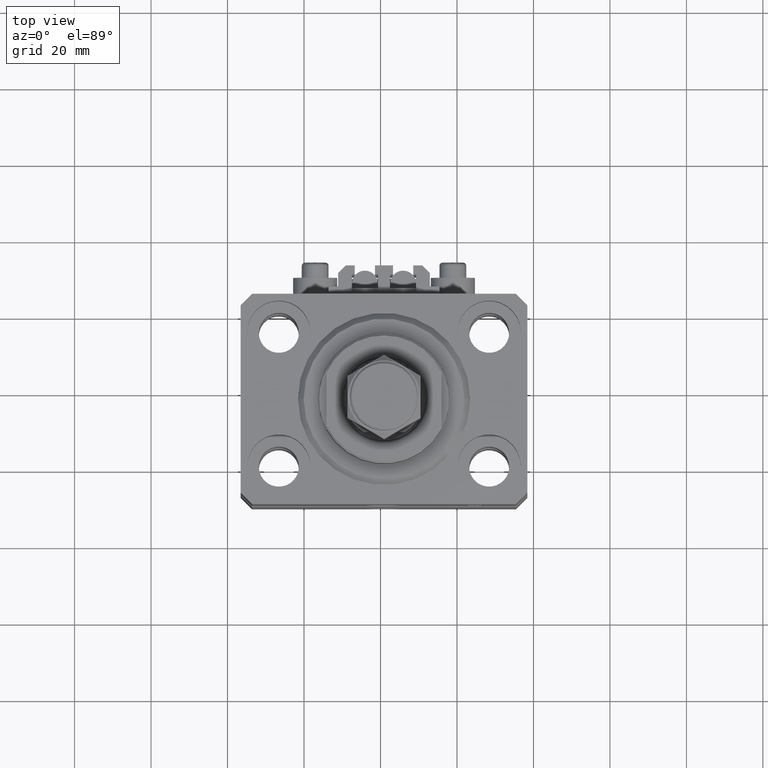
[diagram: clean part render]
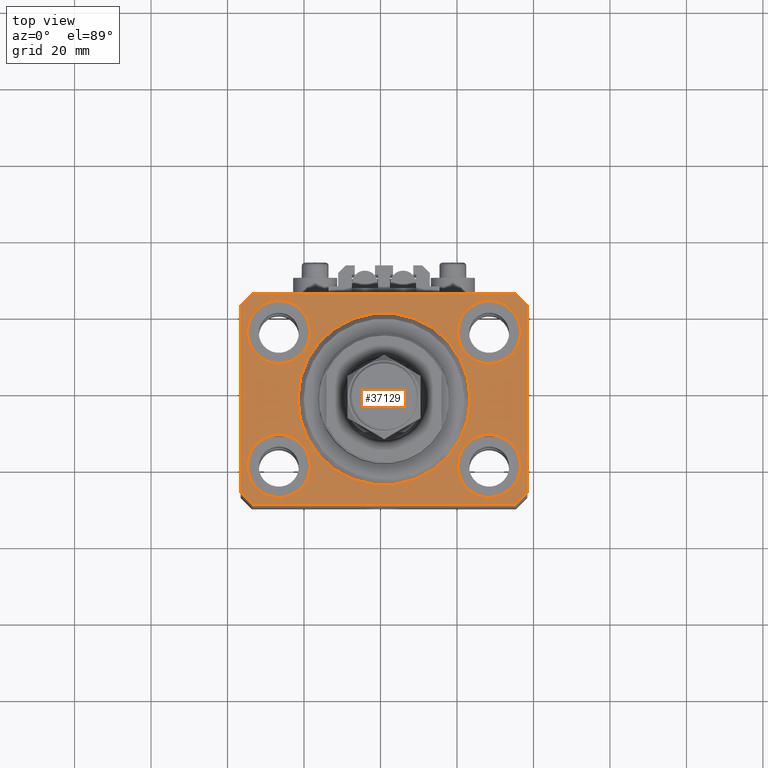
[diagram: same view with one face highlighted and labeled with its STEP entity id]
A machine part, top view. The second image highlights one B-rep face of the part: STEP entity #37129.
In plain terms, the highlighted planar face has unit normal (0, 0, 1).
Its self-contained STEP definition (entity closure, byte-faithful):
#67 = CARTESIAN_POINT ( 'NONE',  ( 0.000000000000000000, 0.000000000000000000, 0.000000000000000000 ) ) ;
#353 = CARTESIAN_POINT ( 'NONE',  ( -34.49999999999999289, 27.50000000000000000, 0.000000000000000000 ) ) ;
#370 = CARTESIAN_POINT ( 'NONE',  ( -37.49999999999999289, 24.50000000000000000, 0.000000000000000000 ) ) ;
#383 = VECTOR ( 'NONE', #3905, 1000.000000000000000 ) ;
#836 = ORIENTED_EDGE ( 'NONE', *, *, #43142, .F. ) ;
#885 = VECTOR ( 'NONE', #36790, 1000.000000000000114 ) ;
#1406 = ORIENTED_EDGE ( 'NONE', *, *, #6648, .T. ) ;
#1569 = EDGE_CURVE ( 'NONE', #31889, #34473, #16329, .T. ) ;
#1580 = DIRECTION ( 'NONE',  ( 1.000000000000000000, 0.000000000000000000, 0.000000000000000000 ) ) ;
#2079 = AXIS2_PLACEMENT_3D ( 'NONE', #2162, #28844, #25101 ) ;
#2162 = CARTESIAN_POINT ( 'NONE',  ( 27.49999999999999645, 17.50000000000001066, 0.000000000000000000 ) ) ;
#2267 = CARTESIAN_POINT ( 'NONE',  ( -35.75000000000000711, -17.50000000000000000, 0.000000000000000000 ) ) ;
#2297 = VECTOR ( 'NONE', #17870, 1000.000000000000000 ) ;
#2460 = DIRECTION ( 'NONE',  ( 0.000000000000000000, -1.000000000000000000, 0.000000000000000000 ) ) ;
#2657 = LINE ( 'NONE', #14385, #2297 ) ;
#2788 = AXIS2_PLACEMENT_3D ( 'NONE', #9709, #9950, #17673 ) ;
#3905 = DIRECTION ( 'NONE',  ( 1.076236605503979380E-14, 1.000000000000000000, 0.000000000000000000 ) ) ;
#4105 = CARTESIAN_POINT ( 'NONE',  ( 19.25000000000000000, -17.50000000000000000, 0.000000000000000000 ) ) ;
#4373 = AXIS2_PLACEMENT_3D ( 'NONE', #5833, #20532, #8853 ) ;
#4401 = CARTESIAN_POINT ( 'NONE',  ( 37.49999999999999289, -24.50000000000000000, 0.000000000000000000 ) ) ;
#4476 = EDGE_CURVE ( 'NONE', #27150, #20739, #42614, .T. ) ;
#5407 = EDGE_LOOP ( 'NONE', ( #18723, #836 ) ) ;
#5465 = CARTESIAN_POINT ( 'NONE',  ( -27.50000000000000355, 17.50000000000000000, 0.000000000000000000 ) ) ;
#5833 = CARTESIAN_POINT ( 'NONE',  ( 27.50000000000000355, -17.50000000000000000, 0.000000000000000000 ) ) ;
#5877 = VERTEX_POINT ( 'NONE', #2267 ) ;
#6196 = EDGE_CURVE ( 'NONE', #29832, #36337, #10106, .T. ) ;
#6248 = AXIS2_PLACEMENT_3D ( 'NONE', #25489, #28977, #40449 ) ;
#6648 = EDGE_CURVE ( 'NONE', #26087, #48477, #7516, .T. ) ;
#7302 = EDGE_CURVE ( 'NONE', #29399, #20218, #34849, .T. ) ;
#7516 = LINE ( 'NONE', #26960, #41177 ) ;
#7518 = EDGE_LOOP ( 'NONE', ( #10762, #25119 ) ) ;
#7865 = EDGE_CURVE ( 'NONE', #19326, #24314, #10181, .T. ) ;
#7892 = VECTOR ( 'NONE', #23280, 1000.000000000000000 ) ;
#8157 = ORIENTED_EDGE ( 'NONE', *, *, #4476, .T. ) ;
#8319 = CARTESIAN_POINT ( 'NONE',  ( 34.49999999999999289, -27.49999999999999645, 0.000000000000000000 ) ) ;
#8567 = VERTEX_POINT ( 'NONE', #370 ) ;
#8853 = DIRECTION ( 'NONE',  ( 1.000000000000000000, 0.000000000000000000, 0.000000000000000000 ) ) ;
#9073 = EDGE_CURVE ( 'NONE', #48477, #15450, #19251, .T. ) ;
#9326 = AXIS2_PLACEMENT_3D ( 'NONE', #30115, #45070, #36863 ) ;
#9415 = EDGE_CURVE ( 'NONE', #36337, #29832, #36473, .T. ) ;
#9709 = CARTESIAN_POINT ( 'NONE',  ( -27.50000000000000355, -17.50000000000000000, 0.000000000000000000 ) ) ;
#9866 = EDGE_LOOP ( 'NONE', ( #23550, #26777 ) ) ;
#9950 = DIRECTION ( 'NONE',  ( 0.000000000000000000, 0.000000000000000000, 1.000000000000000000 ) ) ;
#10106 = CIRCLE ( 'NONE', #9326, 8.250000000000000000 ) ;
#10181 = CIRCLE ( 'NONE', #17354, 8.249999999999992895 ) ;
#10281 = VERTEX_POINT ( 'NONE', #24386 ) ;
#10357 = EDGE_CURVE ( 'NONE', #10281, #27150, #2657, .T. ) ;
#10748 = DIRECTION ( 'NONE',  ( 1.000000000000000000, 0.000000000000000000, 0.000000000000000000 ) ) ;
#10762 = ORIENTED_EDGE ( 'NONE', *, *, #1569, .F. ) ;
#10936 = LINE ( 'NONE', #41596, #12842 ) ;
#11357 = ORIENTED_EDGE ( 'NONE', *, *, #10357, .T. ) ;
#11773 = FACE_BOUND ( 'NONE', #5407, .T. ) ;
#12265 = DIRECTION ( 'NONE',  ( 0.000000000000000000, 0.000000000000000000, 1.000000000000000000 ) ) ;
#12316 = LINE ( 'NONE', #353, #7892 ) ;
#12463 = ORIENTED_EDGE ( 'NONE', *, *, #35895, .T. ) ;
#12604 = DIRECTION ( 'NONE',  ( 1.000000000000000000, 0.000000000000000000, 0.000000000000000000 ) ) ;
#12626 = CIRCLE ( 'NONE', #6248, 8.250000000000000000 ) ;
#12842 = VECTOR ( 'NONE', #2460, 1000.000000000000000 ) ;
#13047 = CARTESIAN_POINT ( 'NONE',  ( 27.49999999999999645, 17.50000000000001066, 0.000000000000000000 ) ) ;
#13614 = VERTEX_POINT ( 'NONE', #40188 ) ;
#13896 = DIRECTION ( 'NONE',  ( 0.000000000000000000, 0.000000000000000000, 1.000000000000000000 ) ) ;
#14347 = LINE ( 'NONE', #44259, #885 ) ;
#14385 = CARTESIAN_POINT ( 'NONE',  ( -37.49999999999999289, -24.50000000000000000, 0.000000000000000000 ) ) ;
#15261 = DIRECTION ( 'NONE',  ( 1.000000000000000000, 0.000000000000000000, -0.000000000000000000 ) ) ;
#15450 = VERTEX_POINT ( 'NONE', #47794 ) ;
#15499 = FACE_BOUND ( 'NONE', #7518, .T. ) ;
#16106 = AXIS2_PLACEMENT_3D ( 'NONE', #24550, #28285, #12604 ) ;
#16262 = ORIENTED_EDGE ( 'NONE', *, *, #20470, .F. ) ;
#16329 = CIRCLE ( 'NONE', #4373, 8.250000000000000000 ) ;
#16873 = CARTESIAN_POINT ( 'NONE',  ( 19.25000000000000000, 17.50000000000001066, 0.000000000000000000 ) ) ;
#17354 = AXIS2_PLACEMENT_3D ( 'NONE', #13047, #25254, #1580 ) ;
#17673 = DIRECTION ( 'NONE',  ( 1.000000000000000000, 0.000000000000000000, 0.000000000000000000 ) ) ;
#17818 = EDGE_CURVE ( 'NONE', #20739, #13614, #14347, .T. ) ;
#17870 = DIRECTION ( 'NONE',  ( 0.7071067811865483499, -0.7071067811865466846, 0.000000000000000000 ) ) ;
#18723 = ORIENTED_EDGE ( 'NONE', *, *, #7302, .F. ) ;
#19041 = EDGE_CURVE ( 'NONE', #8567, #10281, #10936, .T. ) ;
#19246 = PLANE ( 'NONE',  #39770 ) ;
#19251 = LINE ( 'NONE', #34470, #45253 ) ;
#19326 = VERTEX_POINT ( 'NONE', #33306 ) ;
#19523 = ORIENTED_EDGE ( 'NONE', *, *, #9073, .T. ) ;
#19606 = LINE ( 'NONE', #4401, #383 ) ;
#19775 = AXIS2_PLACEMENT_3D ( 'NONE', #5465, #39618, #47832 ) ;
#20190 = EDGE_LOOP ( 'NONE', ( #19523, #12463, #36990, #11357, #8157, #46026, #26635, #1406 ) ) ;
#20218 = VERTEX_POINT ( 'NONE', #39332 ) ;
#20470 = EDGE_CURVE ( 'NONE', #5877, #41251, #32025, .T. ) ;
#20532 = DIRECTION ( 'NONE',  ( 0.000000000000000000, 0.000000000000000000, 1.000000000000000000 ) ) ;
#20705 = CARTESIAN_POINT ( 'NONE',  ( 35.75000000000000711, -17.50000000000000000, 0.000000000000000000 ) ) ;
#20717 = AXIS2_PLACEMENT_3D ( 'NONE', #40918, #33180, #10748 ) ;
#20739 = VERTEX_POINT ( 'NONE', #8319 ) ;
#21621 = DIRECTION ( 'NONE',  ( 1.000000000000000000, 0.000000000000000000, 0.000000000000000000 ) ) ;
#21861 = CARTESIAN_POINT ( 'NONE',  ( 0.000000000000000000, 0.000000000000000000, 0.000000000000000000 ) ) ;
#23280 = DIRECTION ( 'NONE',  ( -0.7071067811865471286, -0.7071067811865479058, 0.000000000000000000 ) ) ;
#23525 = EDGE_CURVE ( 'NONE', #13614, #26087, #19606, .T. ) ;
#23550 = ORIENTED_EDGE ( 'NONE', *, *, #7865, .F. ) ;
#24314 = VERTEX_POINT ( 'NONE', #16873 ) ;
#24386 = CARTESIAN_POINT ( 'NONE',  ( -37.49999999999999289, -24.50000000000000000, 0.000000000000000000 ) ) ;
#24550 = CARTESIAN_POINT ( 'NONE',  ( -27.50000000000000355, -17.50000000000000000, 0.000000000000000000 ) ) ;
#24850 = EDGE_CURVE ( 'NONE', #41251, #5877, #33081, .T. ) ;
#25101 = DIRECTION ( 'NONE',  ( 1.000000000000000000, 0.000000000000000000, 0.000000000000000000 ) ) ;
#25102 = EDGE_LOOP ( 'NONE', ( #39714, #44420 ) ) ;
#25119 = ORIENTED_EDGE ( 'NONE', *, *, #35271, .F. ) ;
#25254 = DIRECTION ( 'NONE',  ( 0.000000000000000000, 0.000000000000000000, 1.000000000000000000 ) ) ;
#25489 = CARTESIAN_POINT ( 'NONE',  ( 27.50000000000000355, -17.50000000000000000, 0.000000000000000000 ) ) ;
#26087 = VERTEX_POINT ( 'NONE', #41365 ) ;
#26328 = EDGE_CURVE ( 'NONE', #24314, #19326, #40319, .T. ) ;
#26635 = ORIENTED_EDGE ( 'NONE', *, *, #23525, .T. ) ;
#26777 = ORIENTED_EDGE ( 'NONE', *, *, #26328, .F. ) ;
#26960 = CARTESIAN_POINT ( 'NONE',  ( 37.50000000000051870, 24.49999999999995381, 0.000000000000000000 ) ) ;
#26981 = FACE_OUTER_BOUND ( 'NONE', #20190, .T. ) ;
#27150 = VERTEX_POINT ( 'NONE', #31426 ) ;
#27475 = DIRECTION ( 'NONE',  ( -1.000000000000000000, 0.000000000000000000, 0.000000000000000000 ) ) ;
#27656 = AXIS2_PLACEMENT_3D ( 'NONE', #21861, #13896, #21621 ) ;
#27715 = FACE_BOUND ( 'NONE', #9866, .T. ) ;
#28285 = DIRECTION ( 'NONE',  ( 0.000000000000000000, 0.000000000000000000, 1.000000000000000000 ) ) ;
#28844 = DIRECTION ( 'NONE',  ( 0.000000000000000000, 0.000000000000000000, 1.000000000000000000 ) ) ;
#28977 = DIRECTION ( 'NONE',  ( 0.000000000000000000, 0.000000000000000000, 1.000000000000000000 ) ) ;
#29228 = EDGE_LOOP ( 'NONE', ( #30766, #16262 ) ) ;
#29399 = VERTEX_POINT ( 'NONE', #46997 ) ;
#29655 = CARTESIAN_POINT ( 'NONE',  ( -35.75000000000000711, 17.50000000000000000, 0.000000000000000000 ) ) ;
#29832 = VERTEX_POINT ( 'NONE', #29655 ) ;
#30115 = CARTESIAN_POINT ( 'NONE',  ( -27.50000000000000355, 17.50000000000000000, 0.000000000000000000 ) ) ;
#30766 = ORIENTED_EDGE ( 'NONE', *, *, #24850, .F. ) ;
#31219 = FACE_BOUND ( 'NONE', #29228, .T. ) ;
#31426 = CARTESIAN_POINT ( 'NONE',  ( -34.49999999999998579, -27.49999999999999645, 0.000000000000000000 ) ) ;
#31889 = VERTEX_POINT ( 'NONE', #20705 ) ;
#32025 = CIRCLE ( 'NONE', #16106, 8.250000000000000000 ) ;
#33081 = CIRCLE ( 'NONE', #2788, 8.250000000000000000 ) ;
#33180 = DIRECTION ( 'NONE',  ( 0.000000000000000000, 0.000000000000000000, 1.000000000000000000 ) ) ;
#33306 = CARTESIAN_POINT ( 'NONE',  ( 35.74999999999999289, 17.50000000000001066, 0.000000000000000000 ) ) ;
#34470 = CARTESIAN_POINT ( 'NONE',  ( 34.50000000000056843, 27.50000000000000000, 0.000000000000000000 ) ) ;
#34473 = VERTEX_POINT ( 'NONE', #4105 ) ;
#34849 = CIRCLE ( 'NONE', #27656, 22.50000000000000355 ) ;
#35038 = CARTESIAN_POINT ( 'NONE',  ( 34.50000000000056843, 27.50000000000000000, 0.000000000000000000 ) ) ;
#35271 = EDGE_CURVE ( 'NONE', #34473, #31889, #12626, .T. ) ;
#35895 = EDGE_CURVE ( 'NONE', #15450, #8567, #12316, .T. ) ;
#35932 = CARTESIAN_POINT ( 'NONE',  ( -19.25000000000000355, 17.50000000000000000, 0.000000000000000000 ) ) ;
#36337 = VERTEX_POINT ( 'NONE', #35932 ) ;
#36338 = VECTOR ( 'NONE', #38627, 1000.000000000000000 ) ;
#36473 = CIRCLE ( 'NONE', #19775, 8.250000000000000000 ) ;
#36790 = DIRECTION ( 'NONE',  ( 0.7071067811865474617, 0.7071067811865474617, 0.000000000000000000 ) ) ;
#36863 = DIRECTION ( 'NONE',  ( 1.000000000000000000, 0.000000000000000000, 0.000000000000000000 ) ) ;
#36990 = ORIENTED_EDGE ( 'NONE', *, *, #19041, .T. ) ;
#37129 = ADVANCED_FACE ( 'NONE', ( #31219, #15499, #27715, #42437, #11773, #26981 ), #19246, .T. ) ;
#38627 = DIRECTION ( 'NONE',  ( 1.000000000000000000, 0.000000000000000000, 0.000000000000000000 ) ) ;
#38880 = CARTESIAN_POINT ( 'NONE',  ( -34.49999999999998579, -27.49999999999999645, 0.000000000000000000 ) ) ;
#39332 = CARTESIAN_POINT ( 'NONE',  ( -22.50000000000000355, 2.755455298081544383E-15, 0.000000000000000000 ) ) ;
#39618 = DIRECTION ( 'NONE',  ( 0.000000000000000000, 0.000000000000000000, 1.000000000000000000 ) ) ;
#39666 = CARTESIAN_POINT ( 'NONE',  ( -19.25000000000000355, -17.50000000000000000, 0.000000000000000000 ) ) ;
#39714 = ORIENTED_EDGE ( 'NONE', *, *, #9415, .F. ) ;
#39770 = AXIS2_PLACEMENT_3D ( 'NONE', #67, #12265, #15261 ) ;
#40188 = CARTESIAN_POINT ( 'NONE',  ( 37.49999999999999289, -24.50000000000000000, 0.000000000000000000 ) ) ;
#40319 = CIRCLE ( 'NONE', #2079, 8.249999999999992895 ) ;
#40449 = DIRECTION ( 'NONE',  ( 1.000000000000000000, 0.000000000000000000, 0.000000000000000000 ) ) ;
#40918 = CARTESIAN_POINT ( 'NONE',  ( 0.000000000000000000, 0.000000000000000000, 0.000000000000000000 ) ) ;
#41177 = VECTOR ( 'NONE', #41443, 1000.000000000000114 ) ;
#41251 = VERTEX_POINT ( 'NONE', #39666 ) ;
#41365 = CARTESIAN_POINT ( 'NONE',  ( 37.50000000000051870, 24.49999999999995381, 0.000000000000000000 ) ) ;
#41443 = DIRECTION ( 'NONE',  ( -0.7071067811865356934, 0.7071067811865594521, 0.000000000000000000 ) ) ;
#41596 = CARTESIAN_POINT ( 'NONE',  ( -37.49999999999999289, 24.50000000000000000, 0.000000000000000000 ) ) ;
#42437 = FACE_BOUND ( 'NONE', #25102, .T. ) ;
#42614 = LINE ( 'NONE', #38880, #36338 ) ;
#43142 = EDGE_CURVE ( 'NONE', #20218, #29399, #44638, .T. ) ;
#44259 = CARTESIAN_POINT ( 'NONE',  ( 34.49999999999999289, -27.49999999999999645, 0.000000000000000000 ) ) ;
#44420 = ORIENTED_EDGE ( 'NONE', *, *, #6196, .F. ) ;
#44638 = CIRCLE ( 'NONE', #20717, 22.50000000000000355 ) ;
#45070 = DIRECTION ( 'NONE',  ( 0.000000000000000000, 0.000000000000000000, 1.000000000000000000 ) ) ;
#45253 = VECTOR ( 'NONE', #27475, 1000.000000000000000 ) ;
#46026 = ORIENTED_EDGE ( 'NONE', *, *, #17818, .T. ) ;
#46997 = CARTESIAN_POINT ( 'NONE',  ( 22.50000000000000355, 0.000000000000000000, 0.000000000000000000 ) ) ;
#47794 = CARTESIAN_POINT ( 'NONE',  ( -34.49999999999999289, 27.50000000000000000, 0.000000000000000000 ) ) ;
#47832 = DIRECTION ( 'NONE',  ( 1.000000000000000000, 0.000000000000000000, 0.000000000000000000 ) ) ;
#48477 = VERTEX_POINT ( 'NONE', #35038 ) ;